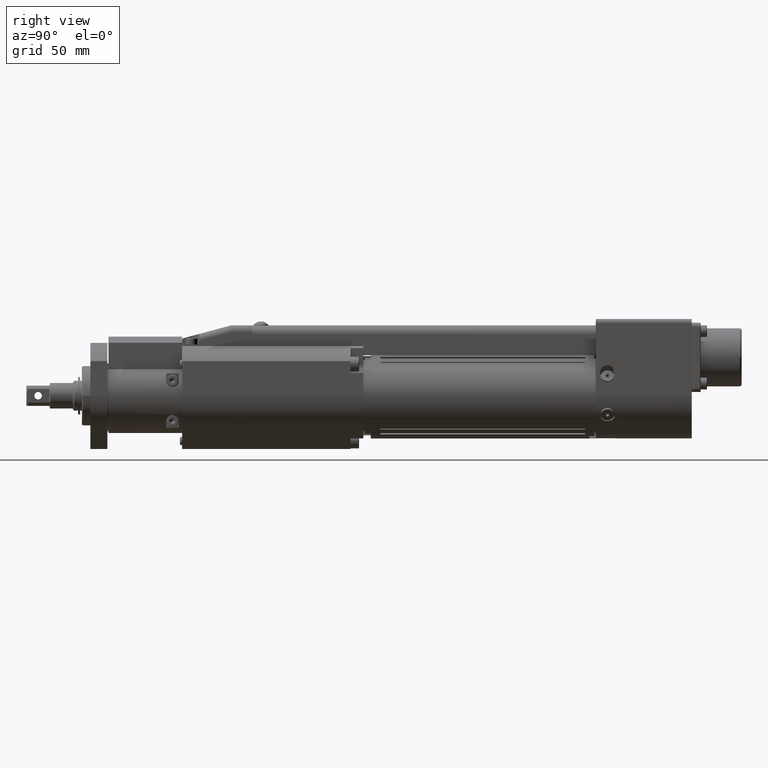
[diagram: clean part render]
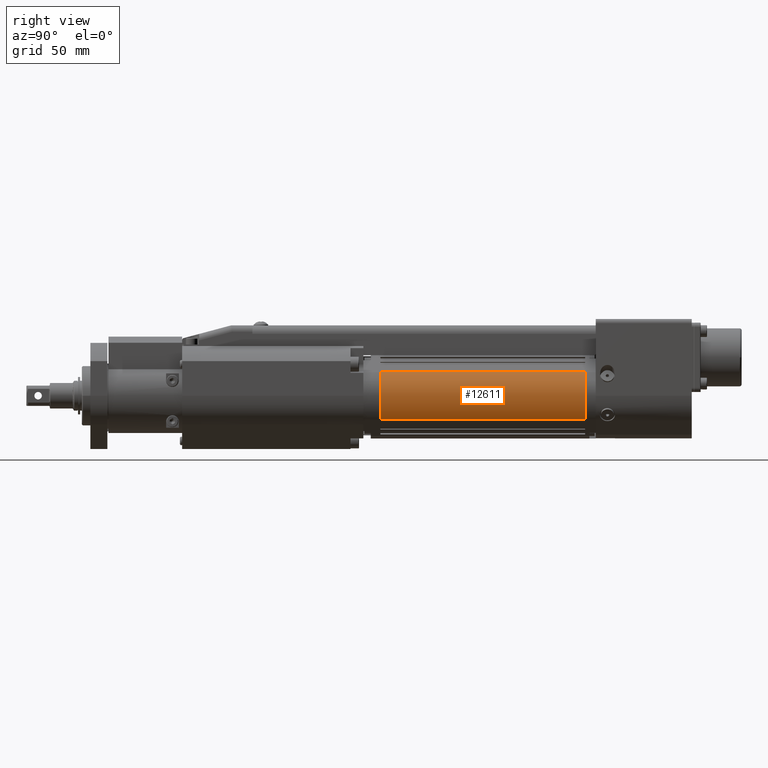
[diagram: same view with one face highlighted and labeled with its STEP entity id]
A machine part, right view. The second image highlights one B-rep face of the part: STEP entity #12611.
In plain terms, the highlighted cylindrical surface (partial cylindrical patch) has radius 18 mm, axis along (0, 1, -0).
Its self-contained STEP definition (entity closure, byte-faithful):
#291=CYLINDRICAL_SURFACE('',#13679,17.9999999999982);
#982=FACE_OUTER_BOUND('',#1724,.T.);
#1724=EDGE_LOOP('',(#9724,#9725,#9726,#9727));
#2327=CIRCLE('',#13508,17.9999999999982);
#2367=CIRCLE('',#13594,17.9999999999914);
#3372=LINE('',#21040,#4416);
#3373=LINE('',#21042,#4417);
#4416=VECTOR('',#16491,10.);
#4417=VECTOR('',#16494,10.);
#5349=VERTEX_POINT('',#20480);
#5350=VERTEX_POINT('',#20481);
#5454=VERTEX_POINT('',#20778);
#5461=VERTEX_POINT('',#20795);
#6762=EDGE_CURVE('',#5349,#5350,#2327,.T.);
#6920=EDGE_CURVE('',#5454,#5461,#2367,.T.);
#7044=EDGE_CURVE('',#5454,#5349,#3372,.T.);
#7045=EDGE_CURVE('',#5461,#5350,#3373,.T.);
#9724=ORIENTED_EDGE('',*,*,#6920,.T.);
#9725=ORIENTED_EDGE('',*,*,#7045,.T.);
#9726=ORIENTED_EDGE('',*,*,#6762,.F.);
#9727=ORIENTED_EDGE('',*,*,#7044,.F.);
#12611=ADVANCED_FACE('',(#982),#291,.T.);
#13508=AXIS2_PLACEMENT_3D('',#20482,#15932,#15933);
#13594=AXIS2_PLACEMENT_3D('',#20797,#16222,#16223);
#13679=AXIS2_PLACEMENT_3D('',#21041,#16492,#16493);
#15932=DIRECTION('center_axis',(6.90085835111325E-17,1.,-2.22044604925031E-16));
#15933=DIRECTION('ref_axis',(0.788010753607996,8.23248031578579E-17,0.615661475324028));
#16222=DIRECTION('center_axis',(6.90085835111325E-17,1.,-2.22044604925031E-16));
#16223=DIRECTION('ref_axis',(0.788010753608015,8.23248031578511E-17,0.615661475324003));
#16491=DIRECTION('',(6.90085835111325E-17,1.,-2.22044604925031E-16));
#16492=DIRECTION('center_axis',(6.90085835111325E-17,1.,-2.22044604925031E-16));
#16493=DIRECTION('ref_axis',(0.788010753607996,8.23248031578579E-17,0.615661475324028));
#16494=DIRECTION('',(6.90085835111325E-17,1.,-2.22044604925031E-16));
#20480=CARTESIAN_POINT('',(14.184193564958,232.,11.0819065558351));
#20481=CARTESIAN_POINT('',(14.1841935649093,232.,-11.0819065558901));
#20482=CARTESIAN_POINT('Origin',(1.55059959019385E-11,232.,3.67440937316355E-12));
#20778=CARTESIAN_POINT('',(14.1841935651221,136.,11.0819065554345));
#20795=CARTESIAN_POINT('',(14.1841935650761,136.,-11.081906556278));
#20797=CARTESIAN_POINT('Origin',(1.84621864864299E-10,136.,-3.9228530009212E-10));
#21040=CARTESIAN_POINT('',(14.184193564958,136.,11.0819065558351));
#21041=CARTESIAN_POINT('Origin',(1.54993710779215E-11,136.,3.69572565523635E-12));
#21042=CARTESIAN_POINT('',(14.1841935649092,136.,-11.0819065558901));